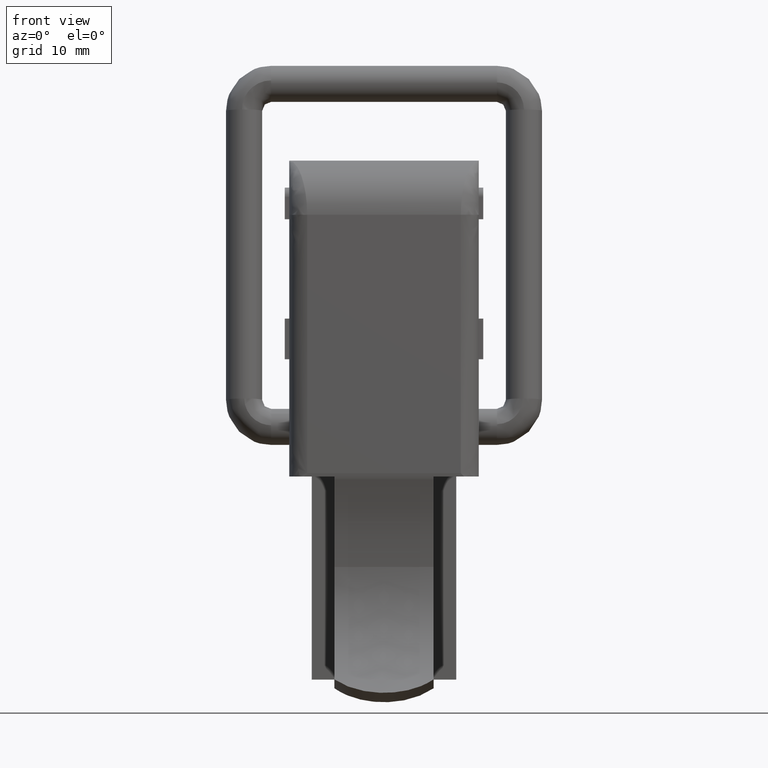
[diagram: clean part render]
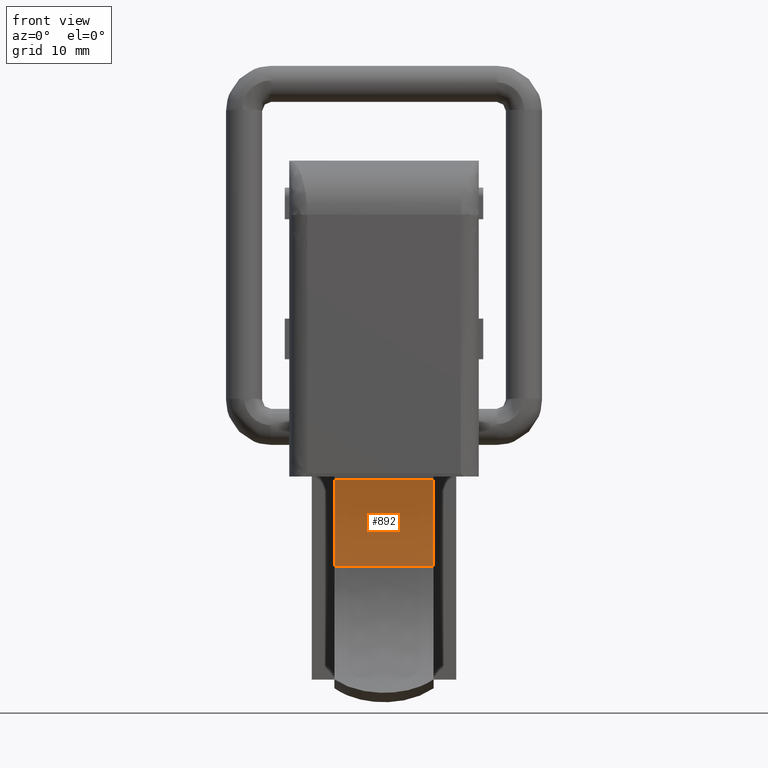
[diagram: same view with one face highlighted and labeled with its STEP entity id]
A machine part, front view. The second image highlights one B-rep face of the part: STEP entity #892.
In plain terms, the highlighted face is a freeform B-spline surface patch.
Its self-contained STEP definition (entity closure, byte-faithful):
#505=CARTESIAN_POINT('',(-5.500000000000000,-6.357142857142859,-5.850002643544770));
#506=VERTEX_POINT('',#505);
#514=CARTESIAN_POINT('',(5.500000000000000,-6.357142857142859,-5.850002643544770));
#515=VERTEX_POINT('',#514);
#516=CARTESIAN_POINT('',(5.500000000000000,-6.357142857142859,-5.850002643544770));
#517=CARTESIAN_POINT('',(-5.500000000000000,-6.357142857142859,-5.850002643544770));
#518=QUASI_UNIFORM_CURVE('',1,(#516,#517),.UNSPECIFIED.,.F.,.U.);
#519=EDGE_CURVE('',#515,#506,#518,.T.);
#551=CARTESIAN_POINT('',(5.500000000000000,-4.499999999999915,-15.500000000000000));
#552=VERTEX_POINT('',#551);
#553=CARTESIAN_POINT('',(5.500000000000000,-6.357142857142859,-5.850002643544770));
#554=CARTESIAN_POINT('',(5.500000000000014,-5.687933861389485,-7.523411345163037));
#555=CARTESIAN_POINT('',(5.499999999999980,-4.784745128351676,-10.711252588312909));
#556=CARTESIAN_POINT('',(5.500000000000020,-4.499864833128810,-14.006712094836979));
#557=CARTESIAN_POINT('',(5.500000000000000,-4.499999999999915,-15.500000000000000));
#558=B_SPLINE_CURVE_WITH_KNOTS('',3,(#553,#554,#555,#556,#557),.UNSPECIFIED.,.F.,.U.,(4,1,4),(1.358472E-009,5.406699352805825,9.886545915481397),.UNSPECIFIED.);
#559=EDGE_CURVE('',#515,#552,#558,.T.);
#612=CARTESIAN_POINT('',(-5.500000000000000,-4.499999999999915,-15.500000000000000));
#613=VERTEX_POINT('',#612);
#614=CARTESIAN_POINT('',(-5.500000000000000,-4.499999999999915,-15.500000000000000));
#615=CARTESIAN_POINT('',(-5.499999999999997,-4.499974961811365,-14.521643825572299));
#616=CARTESIAN_POINT('',(-5.500000000000008,-4.607672065975663,-12.616435225151280));
#617=CARTESIAN_POINT('',(-5.500000000000006,-5.154119033771341,-9.361761741966852));
#618=CARTESIAN_POINT('',(-5.500000000000012,-5.841043798925773,-7.140962177470504));
#619=CARTESIAN_POINT('',(-5.500000000000000,-6.357142857142859,-5.850002643544770));
#620=B_SPLINE_CURVE_WITH_KNOTS('',3,(#614,#615,#616,#617,#618,#619),.UNSPECIFIED.,.F.,.U.,(4,1,1,4),(1.360000E-009,2.935069537848418,5.715654786228875,9.886545915481397),.UNSPECIFIED.);
#621=EDGE_CURVE('',#613,#506,#620,.T.);
#862=CARTESIAN_POINT('',(5.500000000000000,-4.499999999999915,-15.500000000000000));
#863=CARTESIAN_POINT('',(-5.500000000000000,-4.499999999999915,-15.500000000000000));
#864=QUASI_UNIFORM_CURVE('',1,(#862,#863),.UNSPECIFIED.,.F.,.U.);
#865=EDGE_CURVE('',#552,#613,#864,.T.);
#872=CARTESIAN_POINT('',(5.775000000000002,-4.504602391877416,-15.989186258611308));
#873=CARTESIAN_POINT('',(-5.781875000000001,-4.504602391877416,-15.989186258611308));
#874=CARTESIAN_POINT('',(5.775000000000000,-4.400853751306454,-10.475975052310529));
#875=CARTESIAN_POINT('',(-5.781874999999999,-4.400853751306454,-10.475975052310529));
#876=CARTESIAN_POINT('',(5.775000000000001,-6.543907018238020,-5.395267987265872));
#877=CARTESIAN_POINT('',(-5.781874999999999,-6.543907018238020,-5.395267987265872));
#885=(BOUNDED_SURFACE()B_SPLINE_SURFACE(1,2,((#872,#874,#876),(#873,#875,#877)),.UNSPECIFIED.,.F.,.F.,.U.)B_SPLINE_SURFACE_WITH_KNOTS((2,2),(3,3),(0.0,11.556875000000000),(0.0,10.907056570882800),.UNSPECIFIED.)GEOMETRIC_REPRESENTATION_ITEM()RATIONAL_B_SPLINE_SURFACE(((0.998670961978098,0.974457413967691,0.993599010675575),(0.998670961978098,0.974457413967691,0.993599010675575)))REPRESENTATION_ITEM('')SURFACE());
#886=ORIENTED_EDGE('',*,*,#559,.F.);
#887=ORIENTED_EDGE('',*,*,#519,.T.);
#888=ORIENTED_EDGE('',*,*,#621,.F.);
#889=ORIENTED_EDGE('',*,*,#865,.F.);
#890=EDGE_LOOP('',(#886,#887,#888,#889));
#891=FACE_OUTER_BOUND('',#890,.T.);
#892=ADVANCED_FACE('',(#891),#885,.F.);